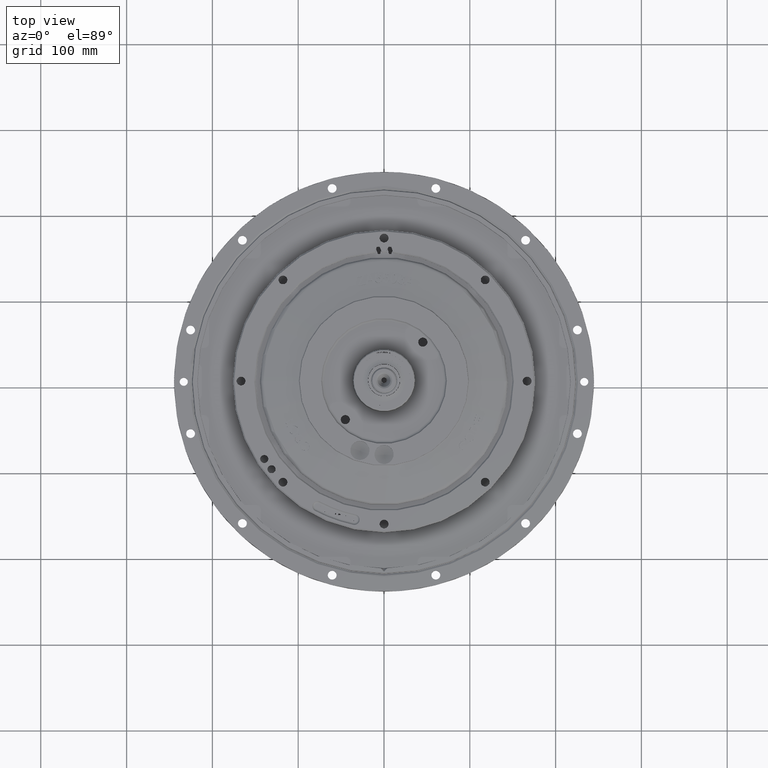
[diagram: clean part render]
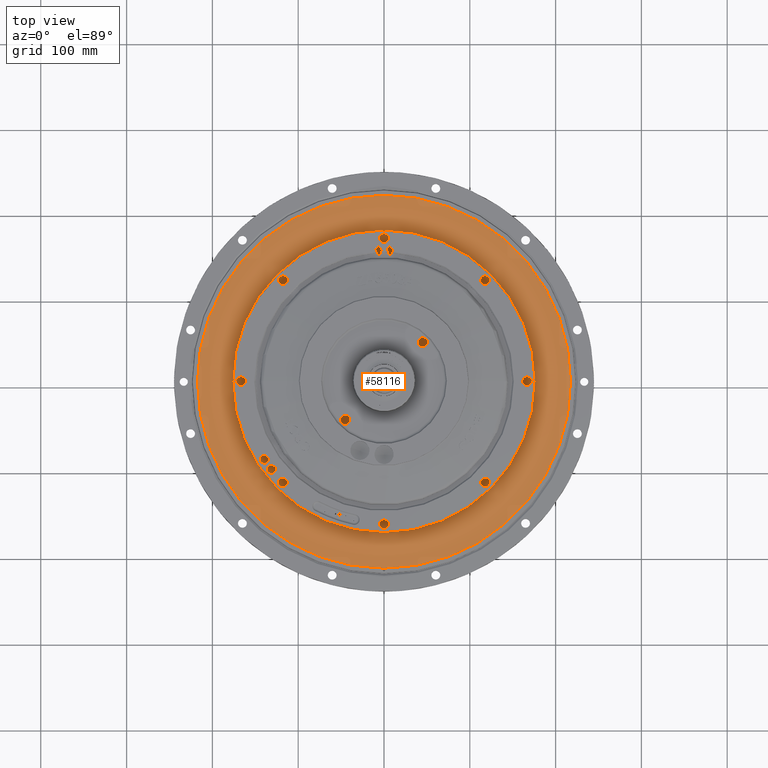
[diagram: same view with one face highlighted and labeled with its STEP entity id]
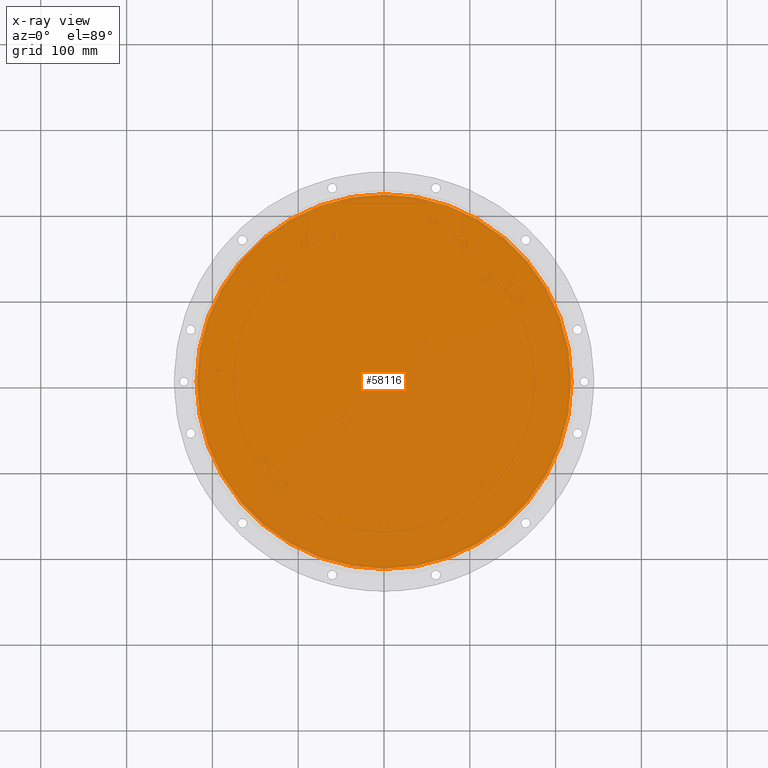
[diagram: x-ray of the same camera — body ghosted, the highlighted face saturated]
A machine part, top view. The second image highlights one B-rep face of the part: STEP entity #58116.
The next image is the same camera in x-ray: the body ghosted, the highlighted face saturated — about 0% of this face is hidden behind the body in this view.
In plain terms, the highlighted planar face has unit normal (0, 0, 1).
Its self-contained STEP definition (entity closure, byte-faithful):
#3369 = DIRECTION ( 'NONE',  ( 0.0000000000000000000, 0.0000000000000000000, 1.000000000000000000 ) ) ;
#3384 = PLANE ( 'NONE',  #36307 ) ;
#3400 = CARTESIAN_POINT ( 'NONE',  ( 2.090190850623791000E-015, 2.152761646101565000E-014, -2.818925648462311500E-014 ) ) ;
#3414 = DIRECTION ( 'NONE',  ( 1.000000000000000000, 0.0000000000000000000, -0.0000000000000000000 ) ) ;
#8299 = EDGE_CURVE ( 'NONE', #11288, #11291, #27669, .T. ) ;
#8479 = EDGE_CURVE ( 'NONE', #11291, #11288, #65505, .T. ) ;
#11288 = VERTEX_POINT ( 'NONE', #45286 ) ;
#11291 = VERTEX_POINT ( 'NONE', #45279 ) ;
#12720 = FACE_OUTER_BOUND ( 'NONE', #31691, .T. ) ;
#27227 = ORIENTED_EDGE ( 'NONE', *, *, #8299, .T. ) ;
#27228 = ORIENTED_EDGE ( 'NONE', *, *, #8479, .T. ) ;
#27669 = CIRCLE ( 'NONE', #52125, 218.4400000000000000 ) ;
#31691 = EDGE_LOOP ( 'NONE', ( #27228, #27227 ) ) ;
#36307 = AXIS2_PLACEMENT_3D ( 'NONE', #3400, #3369, #3414 ) ;
#45279 = CARTESIAN_POINT ( 'NONE',  ( 218.4400000000000000, 2.152761646101565000E-014, -2.818925648462311500E-014 ) ) ;
#45286 = CARTESIAN_POINT ( 'NONE',  ( -218.4400000000000000, 4.827880114159043400E-014, -2.818925648462311500E-014 ) ) ;
#50398 = DIRECTION ( 'NONE',  ( 0.0000000000000000000, 0.0000000000000000000, 1.000000000000000000 ) ) ;
#50399 = DIRECTION ( 'NONE',  ( 1.000000000000000000, 0.0000000000000000000, 0.0000000000000000000 ) ) ;
#50546 = CARTESIAN_POINT ( 'NONE',  ( 2.090190850623791000E-015, 2.152761646101565000E-014, -2.818925648462311500E-014 ) ) ;
#50548 = DIRECTION ( 'NONE',  ( 1.000000000000000000, 0.0000000000000000000, 0.0000000000000000000 ) ) ;
#50626 = DIRECTION ( 'NONE',  ( 0.0000000000000000000, 0.0000000000000000000, 1.000000000000000000 ) ) ;
#50780 = CARTESIAN_POINT ( 'NONE',  ( 2.090190850623791000E-015, 2.152761646101565000E-014, -2.818925648462311500E-014 ) ) ;
#52125 = AXIS2_PLACEMENT_3D ( 'NONE', #50780, #50626, #50548 ) ;
#52360 = AXIS2_PLACEMENT_3D ( 'NONE', #50546, #50398, #50399 ) ;
#58116 = ADVANCED_FACE ( 'NONE', ( #12720 ), #3384, .T. ) ;
#65505 = CIRCLE ( 'NONE', #52360, 218.4400000000000000 ) ;